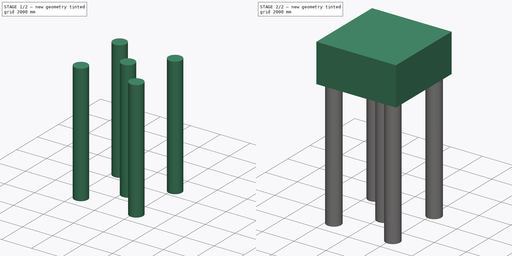
[diagram: build sequence overview — one tinted view per stage of 2, left to right]
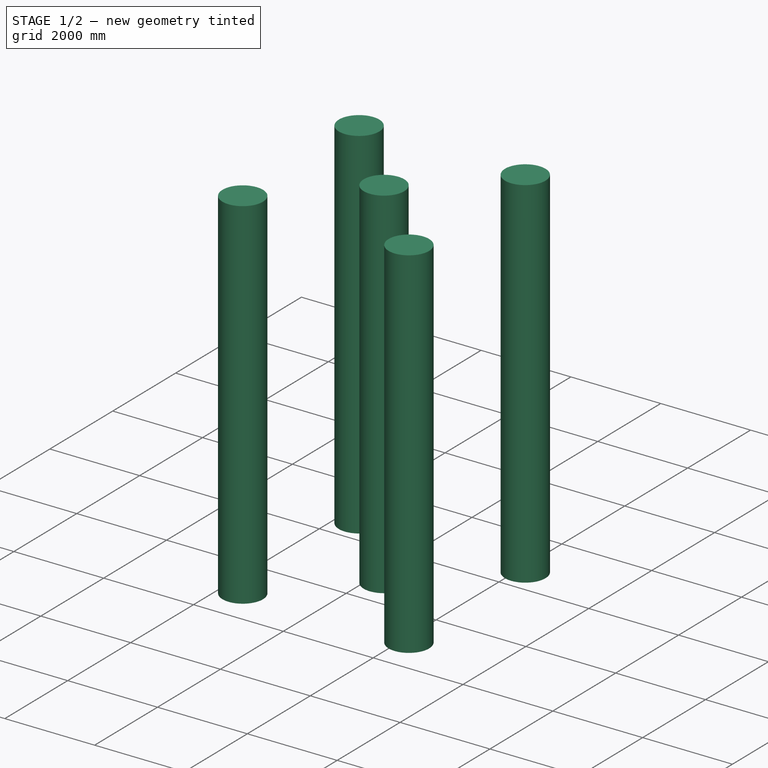
[diagram: stage 1 of 2 — iso view after this stage's code; geometry added in this stage tinted green]
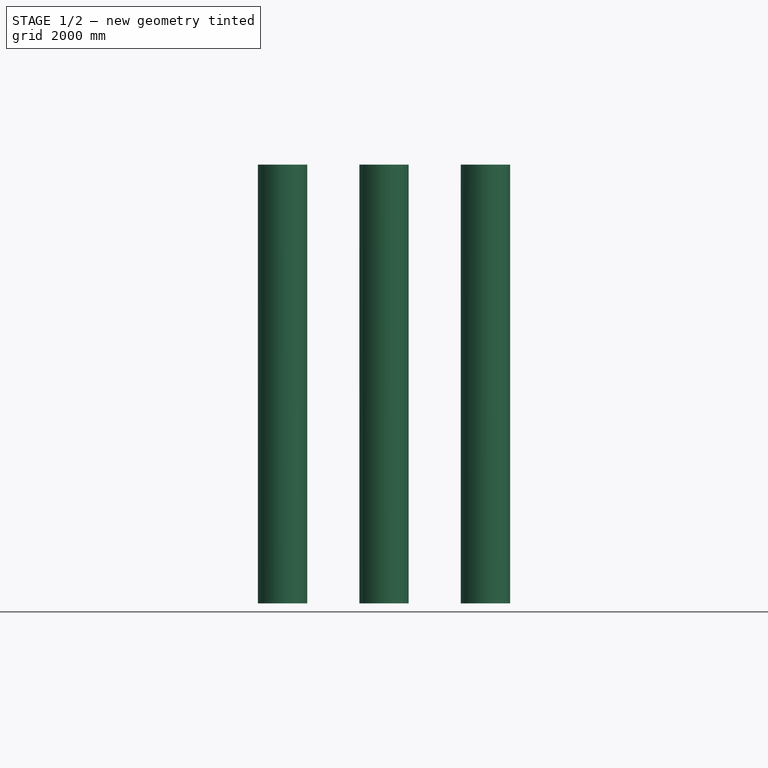
[diagram: stage 1 of 2 — front view after this stage's code; geometry added in this stage tinted green]
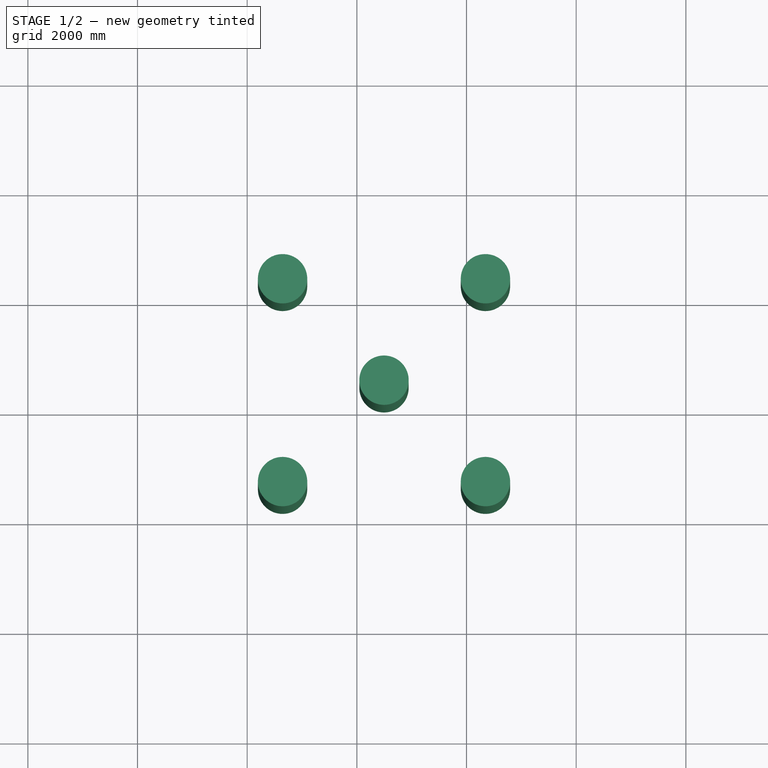
[diagram: stage 1 of 2 — top view after this stage's code; geometry added in this stage tinted green]
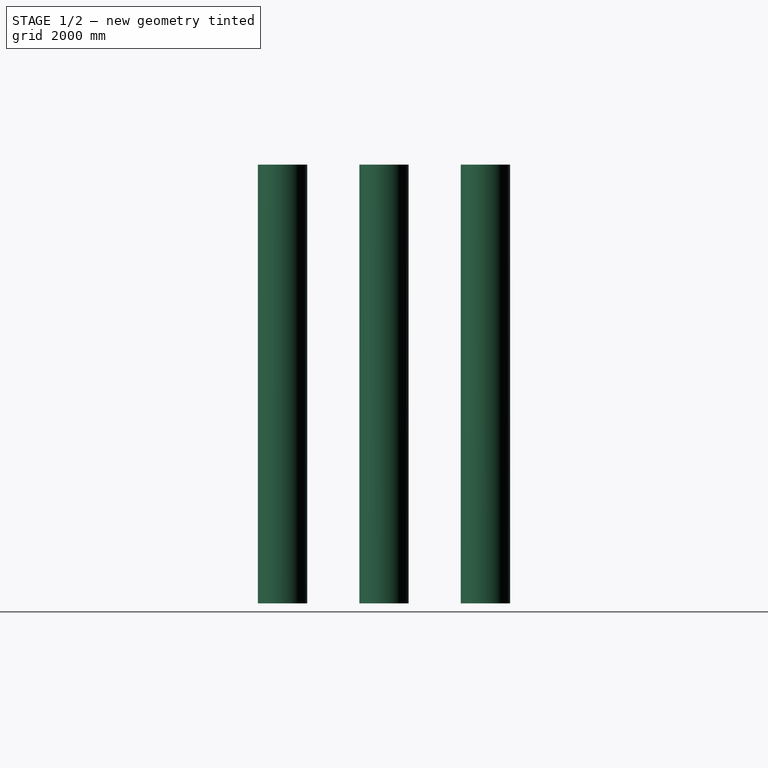
[diagram: stage 1 of 2 — right view after this stage's code; geometry added in this stage tinted green]
FCSTD DOCUMENT  (FreeCAD 0.16R6704 (Git))
Label: Block_and_5_piles_assembly
License: All rights reserved
LicenseURL: http://en.wikipedia.org/wiki/All_rights_reserved
objects: Sketcher::SketchObject×2, Part::FeaturePython×1, Part::Extrusion×1, Part::MultiFuse×1
note: 5 computed .brp shape members not serialized (recipe doc carries the construction recipe); baked Part::Feature solids carry a one-line shape summary decoded from their .brp

FEATURE [Sketcher::SketchObject] Sketch301  label="Block_dimensions 001"
  sketch-geometry (4):
    g0: LineSegment StartX=0 StartY=4990 StartZ=0 EndX=0 EndY=0 EndZ=0
    g1: LineSegment StartX=0 StartY=0 StartZ=0 EndX=4990 EndY=0 EndZ=0
    g2: LineSegment StartX=4990 StartY=0 StartZ=0 EndX=4990 EndY=4990 EndZ=0
    g3: LineSegment StartX=4990 StartY=4990 StartZ=0 EndX=0 EndY=4990 EndZ=0
  constraints (12):
    c: DistanceX(g3,g3) = 4990  'Width'
    c: DistanceY(g0,g0) = 4990  'Length'
    c: Horizontal(g3)
    c: Horizontal(g1)
    c: Vertical(g0)
    c: Vertical(g2)
    c: Coincident(g0,g3)
    c: Coincident(g2,g3)
    c: Coincident(g0,g1)
    c: Coincident(g1,g2)
    c: DistanceX(g0) = 0
    c: DistanceY(g0) = 0
FEATURE [Part::FeaturePython] Structure061  label="Block_height"  # WARN: FeaturePython — macro-defined, semantics opaque (R4)
  Base = -> Sketch301
  Height = 2400
  Length = 0
  MoveWithHost = false
  Nodes = (2) [(-1317.16,23445.7,0),(-1317.16,23445.7,2400)]
  Normal = (0,0,0)
  Role = 6
  Width = 100
FEATURE [Sketcher::SketchObject] Sketch302  label="Radius_piles "
  ExternalGeometry = -> [Structure061]
  Placement = pos=(0,0,0) rot=(1,0,0;3.14159rad)
  Support = -> Structure061 [Face5]
  sketch-geometry (11):
    g0: Circle CenterX=645 CenterY=-645 CenterZ=0 NormalX=0 NormalY=0 NormalZ=1 Radius=450
    g1: LineSegment [constr] StartX=645 StartY=-22475 StartZ=0 EndX=645 EndY=-29831 EndZ=0
    g2: LineSegment [constr] StartX=36143.2 StartY=-645 StartZ=0 EndX=43706.2 EndY=-645 EndZ=0
    g3: LineSegment [constr] StartX=2495 StartY=-21377 StartZ=0 EndX=2495 EndY=-30917 EndZ=0
    g4: LineSegment [constr] StartX=35883.8 StartY=-4345 StartZ=0 EndX=43595.7 EndY=-4345 EndZ=0
    g5: LineSegment [constr] StartX=35722.6 StartY=-2495 StartZ=0 EndX=43742 EndY=-2495 EndZ=0
    g6: LineSegment [constr] StartX=4345 StartY=-21954 StartZ=0 EndX=4345 EndY=-30866.3 EndZ=0
    g7: Circle CenterX=4345 CenterY=-645 CenterZ=0 NormalX=0 NormalY=0 NormalZ=1 Radius=450
    g8: Circle CenterX=2495 CenterY=-2495 CenterZ=0 NormalX=0 NormalY=0 NormalZ=1 Radius=450
    g9: Circle CenterX=645 CenterY=-4345 CenterZ=0 NormalX=0 NormalY=0 NormalZ=1 Radius=450
    g10: Circle CenterX=4345 CenterY=-4345 CenterZ=0 NormalX=0 NormalY=0 NormalZ=1 Radius=450
  constraints (27):
    c: Vertical(g1)
    c: Horizontal(g2)
    c: PointOnObject(g0,g2)
    c: PointOnObject(g0,g1)
    c: Radius(g0) = 450  'Radius_pile'
    c: Vertical(g3)  'Constraint7'
    c: Symmetric(g-4,g-5,g3)
    c: DistanceX(g1,g3) = 1850  'Vertical_axis_01'
    c: Horizontal(g4)
    c: Horizontal(g5)
    c: Symmetric(g-4,g-6,g5)
    c: Vertical(g6)
    c: DistanceX(g3,g6) = 1850  'Vertical_axis_02'
    c: DistanceY(g5,g2) = 1850  'Horizontal_axis_01'
    c: DistanceY(g4,g5) = 1850  'Horizontal_axis_02'
    c: PointOnObject(g7,g2)
    c: PointOnObject(g8,g5)
    c: PointOnObject(g9,g4)
    c: PointOnObject(g10,g4)
    c: PointOnObject(g9,g1)
    c: PointOnObject(g10,g6)
    c: PointOnObject(g7,g6)
    c: PointOnObject(g8,g3)
    c: Equal(g0,g7)
    c: Equal(g7,g8)
    c: Equal(g8,g9)
    c: Equal(g9,g10)
FEATURE [Part::Extrusion] Extrude_Sketch013  label="5_piles_assembly_height"
  Base = -> Sketch302
  Dir = (0,0,-8000)
  Placement = pos=(0,0,50) rot=(0,0,1;0rad)
  Solid = true
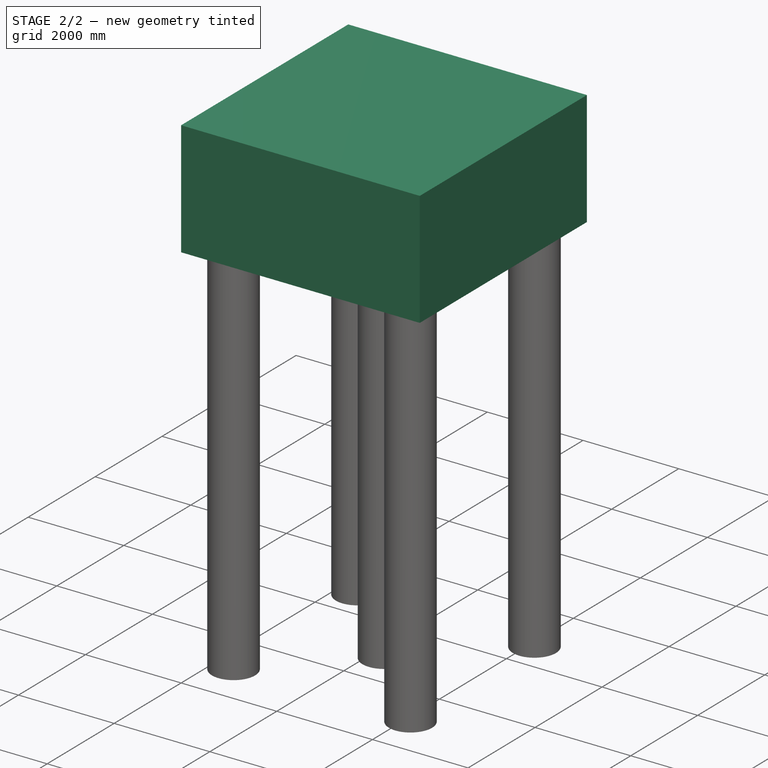
[diagram: stage 2 of 2 — iso view after this stage's code; geometry added in this stage tinted green]
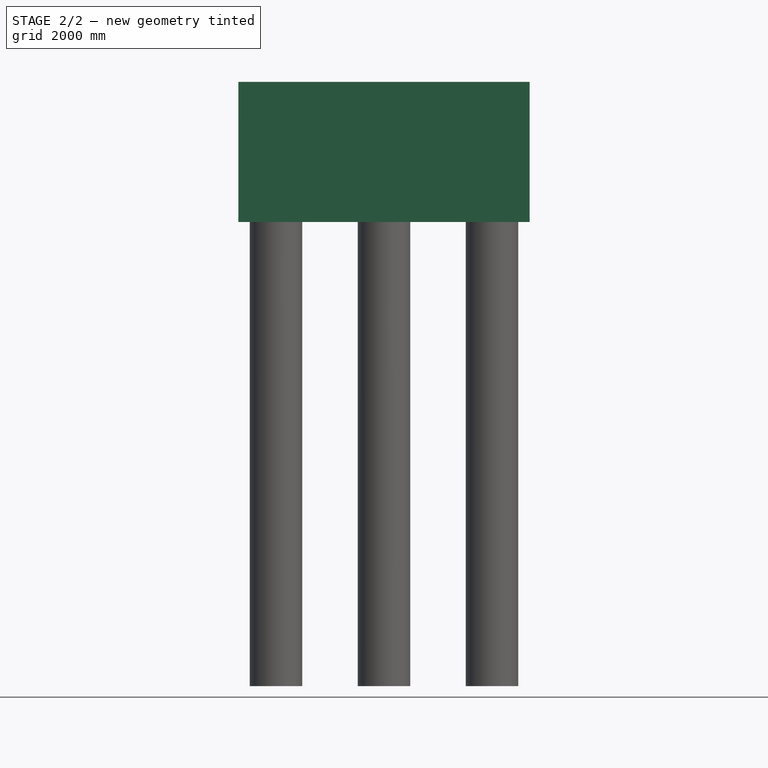
[diagram: stage 2 of 2 — front view after this stage's code; geometry added in this stage tinted green]
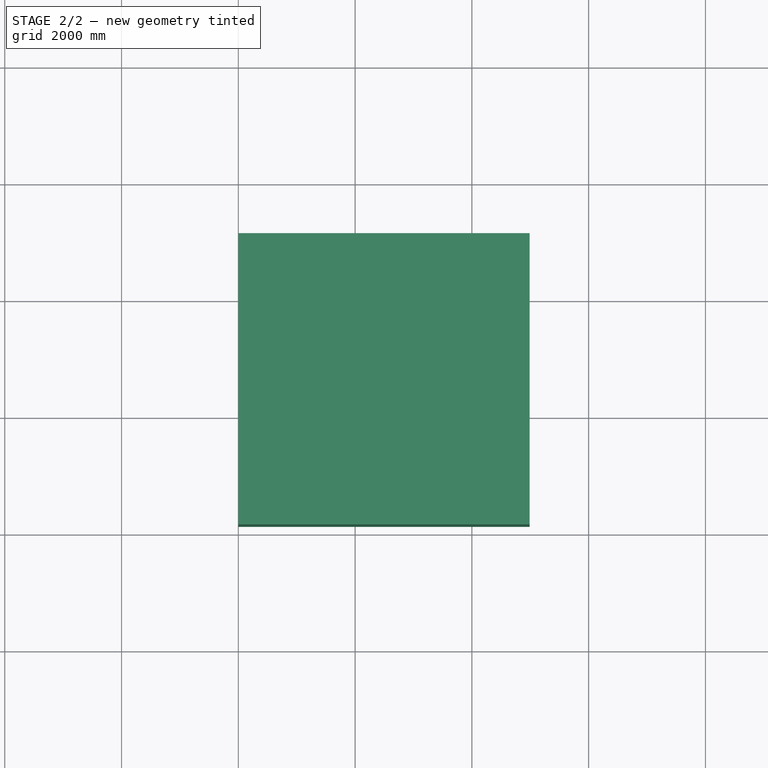
[diagram: stage 2 of 2 — top view after this stage's code; geometry added in this stage tinted green]
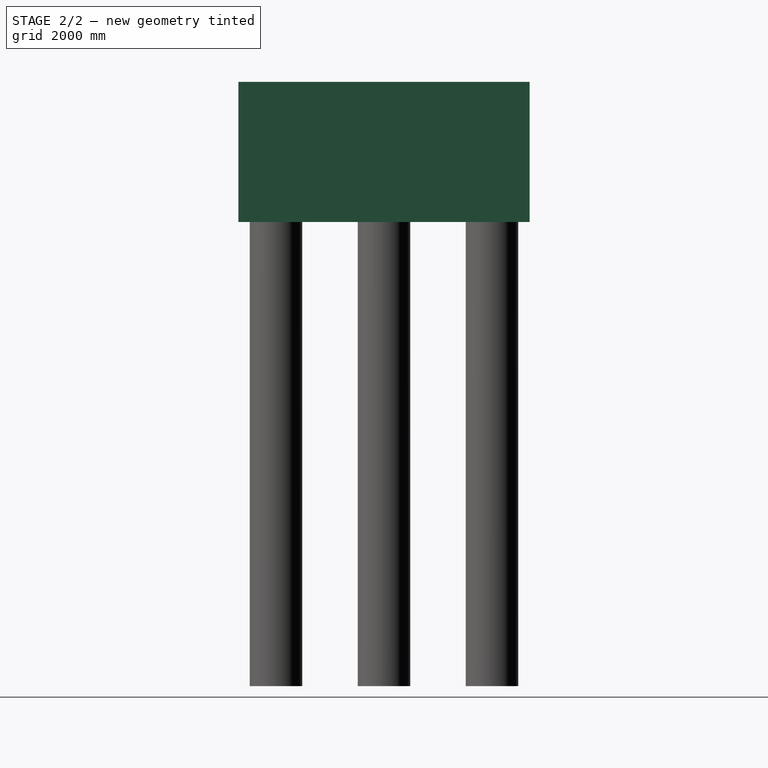
[diagram: stage 2 of 2 — right view after this stage's code; geometry added in this stage tinted green]
FEATURE [Part::MultiFuse] Fusion064  label="Block_and_5_piles_assembly "
  Shapes = -> [Structure061,Extrude_Sketch013]
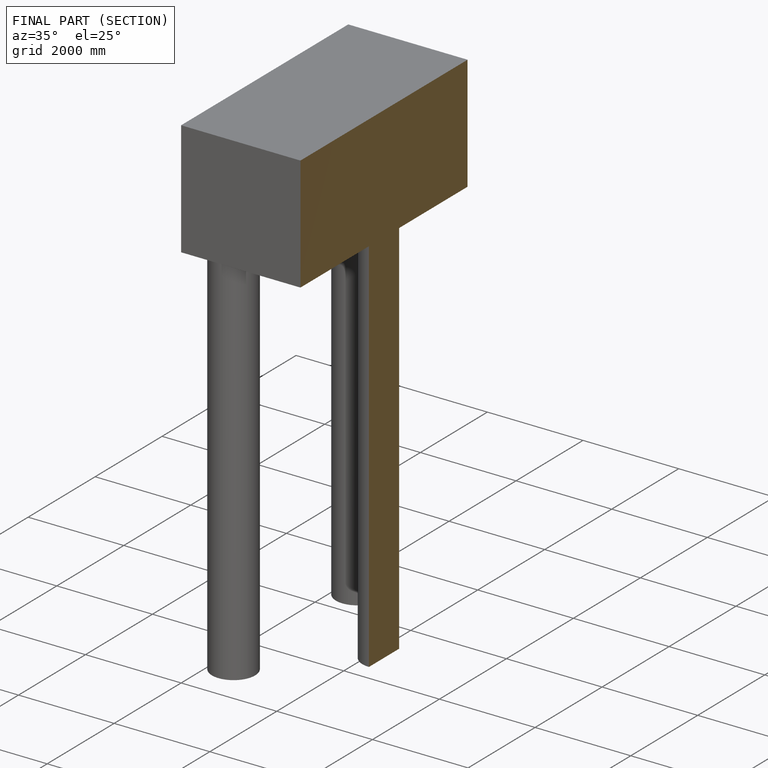
[diagram: finished part — half-section view (interior)]
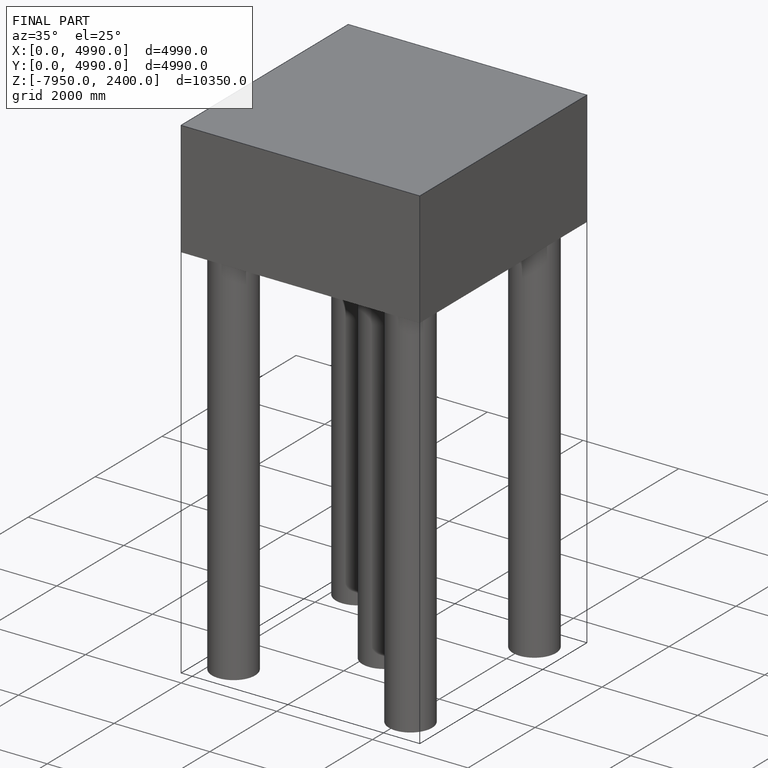
[diagram: finished part — iso view with bounding-box wireframe]
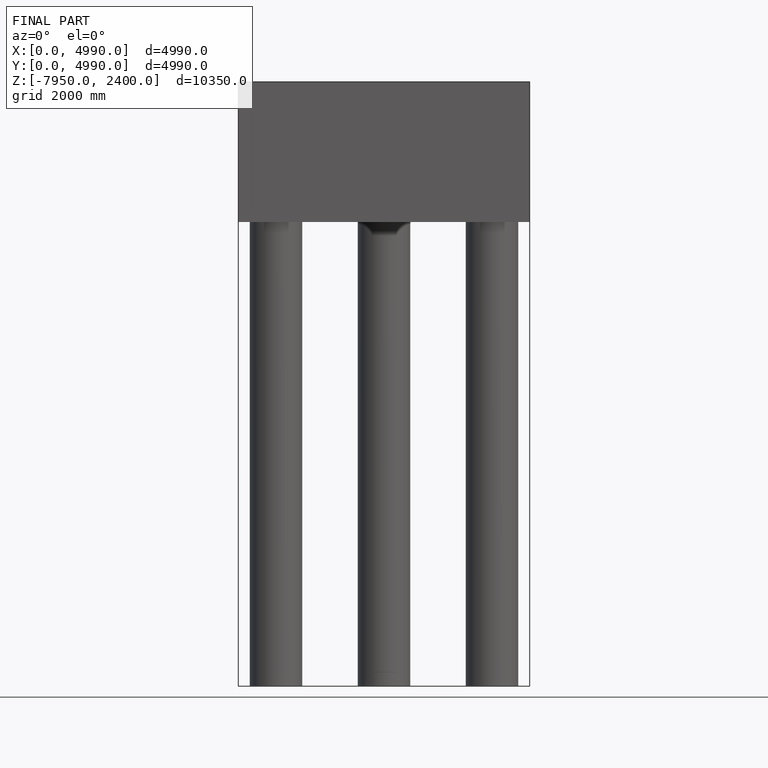
[diagram: finished part — front view with bounding-box wireframe]
